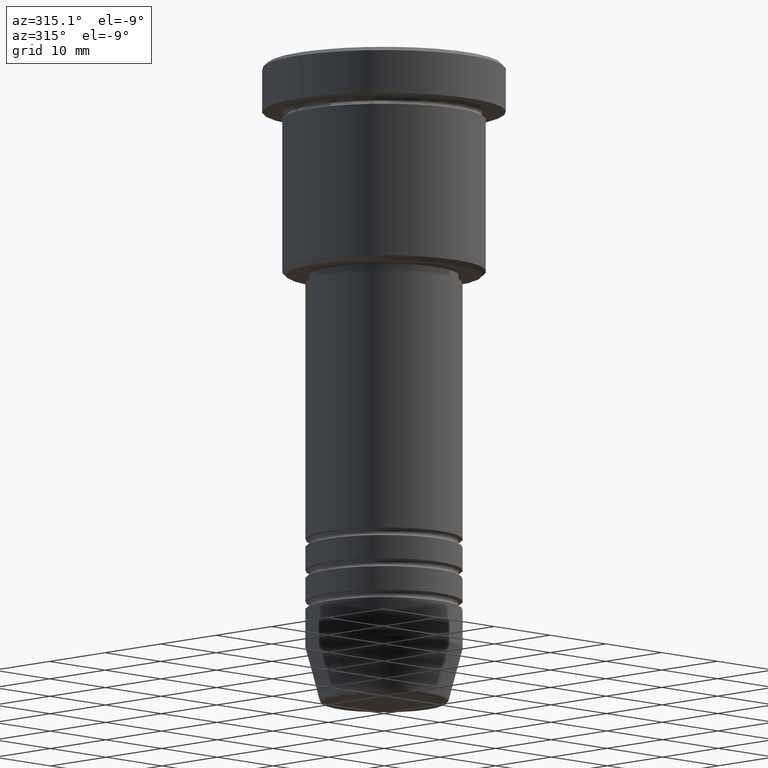
[diagram: clean part render]
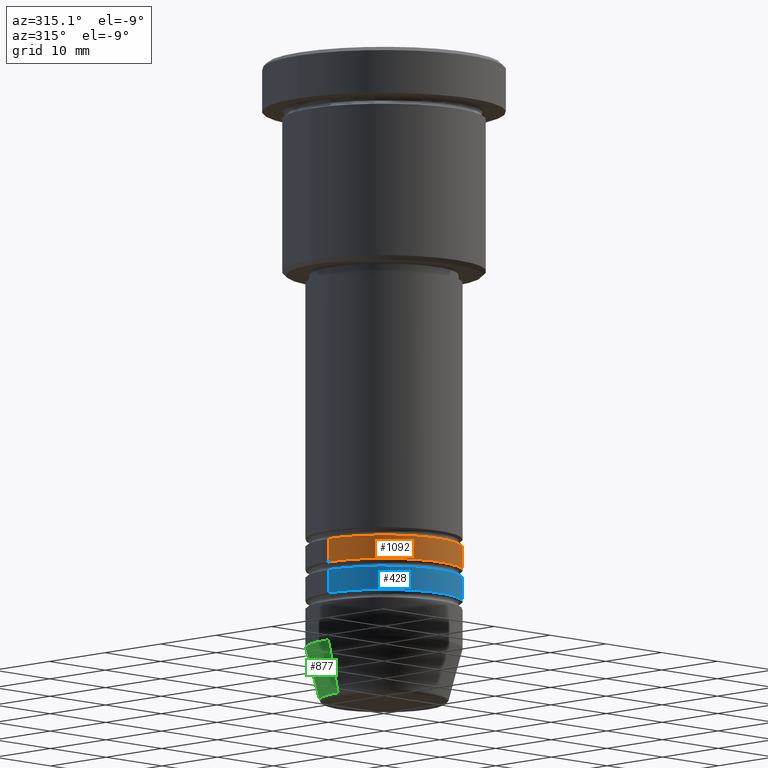
[diagram: same view with three faces highlighted in distinct colors, each labeled with its STEP entity id]
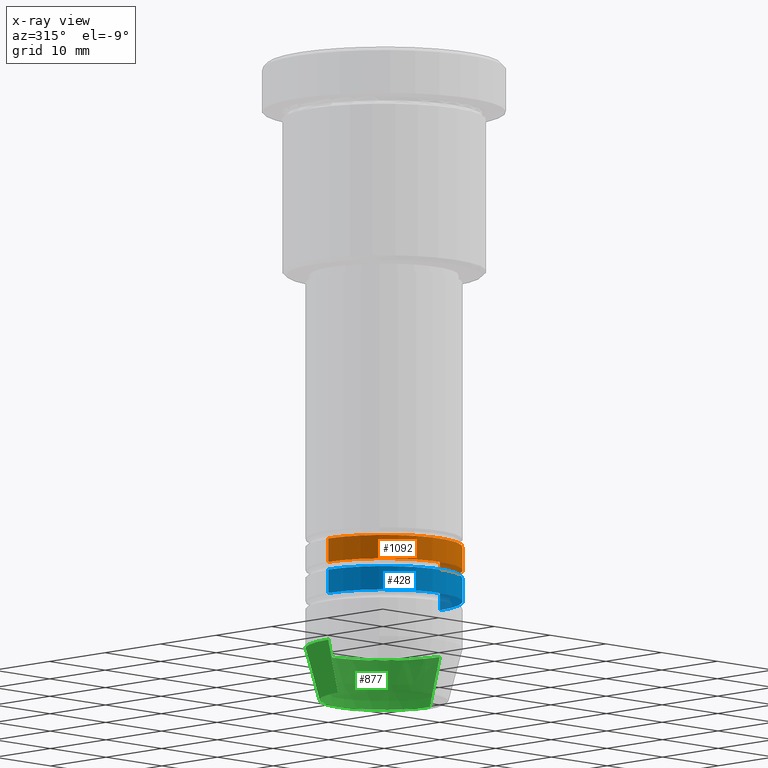
[diagram: x-ray of the same camera — body ghosted, the three highlighted faces saturated]
A machine part, auxiliary view with three faces highlighted in distinct colors.
The next image is the same camera in x-ray (body ghosted, the three faces saturated) — at least one of them is partly hidden behind the body in this view.
Their STEP definitions:

[orange] entity #1092 — the highlighted cylindrical surface (partial cylindrical patch) has radius 10 mm, axis along (-0, -0, 1).
#5 = FACE_OUTER_BOUND ( 'NONE', #1073, .T. ) ;
#60 = CARTESIAN_POINT ( 'NONE',  ( 10.00000000000000178, 0.000000000000000000, -64.99999999999990052 ) ) ;
#93 = CARTESIAN_POINT ( 'NONE',  ( -10.00000000000000000, 1.224646799147353256E-15, -61.99999999999988631 ) ) ;
#105 = EDGE_CURVE ( 'NONE', #955, #1124, #898, .T. ) ;
#151 = DIRECTION ( 'NONE',  ( -0.000000000000000000, -0.000000000000000000, 1.000000000000000000 ) ) ;
#156 = LINE ( 'NONE', #998, #471 ) ;
#188 = CIRCLE ( 'NONE', #648, 10.00000000000000178 ) ;
#205 = CARTESIAN_POINT ( 'NONE',  ( -10.00000000000000178, 1.224646799147353454E-15, -64.99999999999990052 ) ) ;
#256 = DIRECTION ( 'NONE',  ( -0.000000000000000000, -0.000000000000000000, 1.000000000000000000 ) ) ;
#313 = CARTESIAN_POINT ( 'NONE',  ( 10.00000000000000000, 0.000000000000000000, -61.99999999999988631 ) ) ;
#326 = EDGE_CURVE ( 'NONE', #955, #936, #188, .T. ) ;
#357 = CYLINDRICAL_SURFACE ( 'NONE', #839, 10.00000000000000178 ) ;
#377 = DIRECTION ( 'NONE',  ( 1.000000000000000000, 0.000000000000000000, 0.000000000000000000 ) ) ;
#464 = ORIENTED_EDGE ( 'NONE', *, *, #542, .T. ) ;
#471 = VECTOR ( 'NONE', #256, 1000.000000000000000 ) ;
#478 = CARTESIAN_POINT ( 'NONE',  ( 0.000000000000000000, 0.000000000000000000, -61.99999999999988631 ) ) ;
#482 = CARTESIAN_POINT ( 'NONE',  ( 0.000000000000000000, 0.000000000000000000, -64.99999999999990052 ) ) ;
#540 = AXIS2_PLACEMENT_3D ( 'NONE', #478, #852, #1127 ) ;
#542 = EDGE_CURVE ( 'NONE', #936, #928, #156, .T. ) ;
#591 = ORIENTED_EDGE ( 'NONE', *, *, #105, .F. ) ;
#626 = CARTESIAN_POINT ( 'NONE',  ( -10.00000000000000178, 1.224646799147353454E-15, 0.000000000000000000 ) ) ;
#640 = DIRECTION ( 'NONE',  ( -0.000000000000000000, -0.000000000000000000, 1.000000000000000000 ) ) ;
#648 = AXIS2_PLACEMENT_3D ( 'NONE', #482, #847, #656 ) ;
#656 = DIRECTION ( 'NONE',  ( 1.000000000000000000, 0.000000000000000000, 0.000000000000000000 ) ) ;
#687 = CIRCLE ( 'NONE', #540, 10.00000000000000000 ) ;
#690 = EDGE_CURVE ( 'NONE', #1124, #928, #687, .T. ) ;
#698 = ORIENTED_EDGE ( 'NONE', *, *, #690, .F. ) ;
#719 = VECTOR ( 'NONE', #151, 1000.000000000000000 ) ;
#839 = AXIS2_PLACEMENT_3D ( 'NONE', #988, #640, #377 ) ;
#847 = DIRECTION ( 'NONE',  ( -0.000000000000000000, -0.000000000000000000, 1.000000000000000000 ) ) ;
#852 = DIRECTION ( 'NONE',  ( -0.000000000000000000, -0.000000000000000000, 1.000000000000000000 ) ) ;
#898 = LINE ( 'NONE', #626, #719 ) ;
#928 = VERTEX_POINT ( 'NONE', #313 ) ;
#936 = VERTEX_POINT ( 'NONE', #60 ) ;
#955 = VERTEX_POINT ( 'NONE', #205 ) ;
#988 = CARTESIAN_POINT ( 'NONE',  ( 0.000000000000000000, 0.000000000000000000, 0.000000000000000000 ) ) ;
#998 = CARTESIAN_POINT ( 'NONE',  ( 10.00000000000000178, 0.000000000000000000, 0.000000000000000000 ) ) ;
#1073 = EDGE_LOOP ( 'NONE', ( #591, #1162, #464, #698 ) ) ;
#1092 = ADVANCED_FACE ( 'NONE', ( #5 ), #357, .T. ) ;
#1124 = VERTEX_POINT ( 'NONE', #93 ) ;
#1127 = DIRECTION ( 'NONE',  ( 1.000000000000000000, 0.000000000000000000, 0.000000000000000000 ) ) ;
#1162 = ORIENTED_EDGE ( 'NONE', *, *, #326, .T. ) ;

[blue] entity #428 — the highlighted cylindrical surface (partial cylindrical patch) has radius 10 mm, axis along (-0, -0, 1).
#6 = VERTEX_POINT ( 'NONE', #143 ) ;
#31 = CARTESIAN_POINT ( 'NONE',  ( -10.00000000000000000, 1.224646799147353256E-15, -65.99999999999988631 ) ) ;
#66 = CARTESIAN_POINT ( 'NONE',  ( 10.00000000000000000, 0.000000000000000000, -65.99999999999988631 ) ) ;
#129 = ORIENTED_EDGE ( 'NONE', *, *, #855, .T. ) ;
#130 = VECTOR ( 'NONE', #431, 1000.000000000000000 ) ;
#143 = CARTESIAN_POINT ( 'NONE',  ( -10.00000000000000178, 1.224646799147353454E-15, -68.99999999999988631 ) ) ;
#170 = DIRECTION ( 'NONE',  ( 1.000000000000000000, 0.000000000000000000, 0.000000000000000000 ) ) ;
#224 = CARTESIAN_POINT ( 'NONE',  ( -10.00000000000000178, 1.224646799147353454E-15, 0.000000000000000000 ) ) ;
#245 = AXIS2_PLACEMENT_3D ( 'NONE', #731, #483, #838 ) ;
#270 = CYLINDRICAL_SURFACE ( 'NONE', #323, 10.00000000000000178 ) ;
#323 = AXIS2_PLACEMENT_3D ( 'NONE', #625, #897, #879 ) ;
#331 = VERTEX_POINT ( 'NONE', #833 ) ;
#362 = LINE ( 'NONE', #550, #932 ) ;
#372 = VERTEX_POINT ( 'NONE', #31 ) ;
#386 = AXIS2_PLACEMENT_3D ( 'NONE', #991, #546, #170 ) ;
#416 = EDGE_LOOP ( 'NONE', ( #807, #975, #129, #683 ) ) ;
#422 = EDGE_CURVE ( 'NONE', #6, #331, #1123, .T. ) ;
#428 = ADVANCED_FACE ( 'NONE', ( #695 ), #270, .T. ) ;
#431 = DIRECTION ( 'NONE',  ( -0.000000000000000000, -0.000000000000000000, 1.000000000000000000 ) ) ;
#483 = DIRECTION ( 'NONE',  ( -0.000000000000000000, -0.000000000000000000, 1.000000000000000000 ) ) ;
#546 = DIRECTION ( 'NONE',  ( -0.000000000000000000, -0.000000000000000000, 1.000000000000000000 ) ) ;
#550 = CARTESIAN_POINT ( 'NONE',  ( 10.00000000000000178, 0.000000000000000000, 0.000000000000000000 ) ) ;
#625 = CARTESIAN_POINT ( 'NONE',  ( 0.000000000000000000, 0.000000000000000000, 0.000000000000000000 ) ) ;
#667 = CIRCLE ( 'NONE', #245, 10.00000000000000000 ) ;
#683 = ORIENTED_EDGE ( 'NONE', *, *, #1009, .F. ) ;
#695 = FACE_OUTER_BOUND ( 'NONE', #416, .T. ) ;
#731 = CARTESIAN_POINT ( 'NONE',  ( 0.000000000000000000, 0.000000000000000000, -65.99999999999988631 ) ) ;
#761 = EDGE_CURVE ( 'NONE', #6, #372, #1023, .T. ) ;
#786 = VERTEX_POINT ( 'NONE', #66 ) ;
#807 = ORIENTED_EDGE ( 'NONE', *, *, #761, .F. ) ;
#833 = CARTESIAN_POINT ( 'NONE',  ( 10.00000000000000178, 0.000000000000000000, -68.99999999999988631 ) ) ;
#838 = DIRECTION ( 'NONE',  ( 1.000000000000000000, 0.000000000000000000, 0.000000000000000000 ) ) ;
#855 = EDGE_CURVE ( 'NONE', #331, #786, #362, .T. ) ;
#879 = DIRECTION ( 'NONE',  ( 1.000000000000000000, 0.000000000000000000, 0.000000000000000000 ) ) ;
#897 = DIRECTION ( 'NONE',  ( -0.000000000000000000, -0.000000000000000000, 1.000000000000000000 ) ) ;
#901 = DIRECTION ( 'NONE',  ( -0.000000000000000000, -0.000000000000000000, 1.000000000000000000 ) ) ;
#932 = VECTOR ( 'NONE', #901, 1000.000000000000000 ) ;
#975 = ORIENTED_EDGE ( 'NONE', *, *, #422, .T. ) ;
#991 = CARTESIAN_POINT ( 'NONE',  ( 0.000000000000000000, 0.000000000000000000, -68.99999999999988631 ) ) ;
#1009 = EDGE_CURVE ( 'NONE', #372, #786, #667, .T. ) ;
#1023 = LINE ( 'NONE', #224, #130 ) ;
#1123 = CIRCLE ( 'NONE', #386, 10.00000000000000178 ) ;

[green] entity #877 — the highlighted conical surface has half-angle 15 deg.
#2 = DIRECTION ( 'NONE',  ( -0.000000000000000000, -0.000000000000000000, 1.000000000000000000 ) ) ;
#4 = DIRECTION ( 'NONE',  ( -0.000000000000000000, -0.000000000000000000, 1.000000000000000000 ) ) ;
#14 = DIRECTION ( 'NONE',  ( 1.000000000000000000, 0.000000000000000000, 0.000000000000000000 ) ) ;
#25 = VERTEX_POINT ( 'NONE', #854 ) ;
#47 = CARTESIAN_POINT ( 'NONE',  ( -10.00000000000000000, 1.224646799147353256E-15, -75.00000000000000000 ) ) ;
#120 = VERTEX_POINT ( 'NONE', #1150 ) ;
#154 = LINE ( 'NONE', #443, #306 ) ;
#232 = ORIENTED_EDGE ( 'NONE', *, *, #762, .F. ) ;
#306 = VECTOR ( 'NONE', #532, 1000.000000000000114 ) ;
#329 = ORIENTED_EDGE ( 'NONE', *, *, #490, .T. ) ;
#335 = EDGE_CURVE ( 'NONE', #120, #506, #366, .T. ) ;
#348 = CARTESIAN_POINT ( 'NONE',  ( -8.223655072137194821, 1.115877042642912054E-15, -81.62940952255125637 ) ) ;
#366 = CIRCLE ( 'NONE', #929, 8.223655072137194821 ) ;
#376 = DIRECTION ( 'NONE',  ( 1.000000000000000000, 0.000000000000000000, 0.000000000000000000 ) ) ;
#401 = VERTEX_POINT ( 'NONE', #47 ) ;
#443 = CARTESIAN_POINT ( 'NONE',  ( -10.00000000000000000, 1.224646799147353256E-15, -75.00000000000000000 ) ) ;
#490 = EDGE_CURVE ( 'NONE', #506, #401, #154, .T. ) ;
#506 = VERTEX_POINT ( 'NONE', #348 ) ;
#532 = DIRECTION ( 'NONE',  ( -0.2588190451025211281, 3.169619151431769872E-17, 0.9659258262890680902 ) ) ;
#551 = ORIENTED_EDGE ( 'NONE', *, *, #990, .F. ) ;
#587 = ORIENTED_EDGE ( 'NONE', *, *, #335, .T. ) ;
#631 = AXIS2_PLACEMENT_3D ( 'NONE', #650, #919, #1002 ) ;
#639 = CARTESIAN_POINT ( 'NONE',  ( 0.000000000000000000, 0.000000000000000000, -75.00000000000000000 ) ) ;
#641 = EDGE_LOOP ( 'NONE', ( #587, #329, #551, #232 ) ) ;
#650 = CARTESIAN_POINT ( 'NONE',  ( 0.000000000000000000, 0.000000000000000000, -75.00000000000000000 ) ) ;
#762 = EDGE_CURVE ( 'NONE', #120, #25, #799, .T. ) ;
#799 = LINE ( 'NONE', #868, #887 ) ;
#817 = FACE_OUTER_BOUND ( 'NONE', #641, .T. ) ;
#854 = CARTESIAN_POINT ( 'NONE',  ( 10.00000000000000000, 0.000000000000000000, -75.00000000000000000 ) ) ;
#868 = CARTESIAN_POINT ( 'NONE',  ( 10.00000000000000000, 0.000000000000000000, -75.00000000000000000 ) ) ;
#877 = ADVANCED_FACE ( 'NONE', ( #817 ), #1110, .T. ) ;
#887 = VECTOR ( 'NONE', #1160, 1000.000000000000114 ) ;
#919 = DIRECTION ( 'NONE',  ( -0.000000000000000000, -0.000000000000000000, 1.000000000000000000 ) ) ;
#929 = AXIS2_PLACEMENT_3D ( 'NONE', #1120, #2, #14 ) ;
#990 = EDGE_CURVE ( 'NONE', #25, #401, #1027, .T. ) ;
#1002 = DIRECTION ( 'NONE',  ( 1.000000000000000000, 0.000000000000000000, 0.000000000000000000 ) ) ;
#1027 = CIRCLE ( 'NONE', #631, 10.00000000000000000 ) ;
#1063 = AXIS2_PLACEMENT_3D ( 'NONE', #639, #4, #376 ) ;
#1110 = CONICAL_SURFACE ( 'NONE', #1063, 10.00000000000000000, 0.2617993877991498519 ) ;
#1120 = CARTESIAN_POINT ( 'NONE',  ( 0.000000000000000000, 0.000000000000000000, -81.62940952255125637 ) ) ;
#1150 = CARTESIAN_POINT ( 'NONE',  ( 8.223655072137194821, 0.000000000000000000, -81.62940952255125637 ) ) ;
#1160 = DIRECTION ( 'NONE',  ( 0.2588190451025211281, 0.000000000000000000, 0.9659258262890680902 ) ) ;